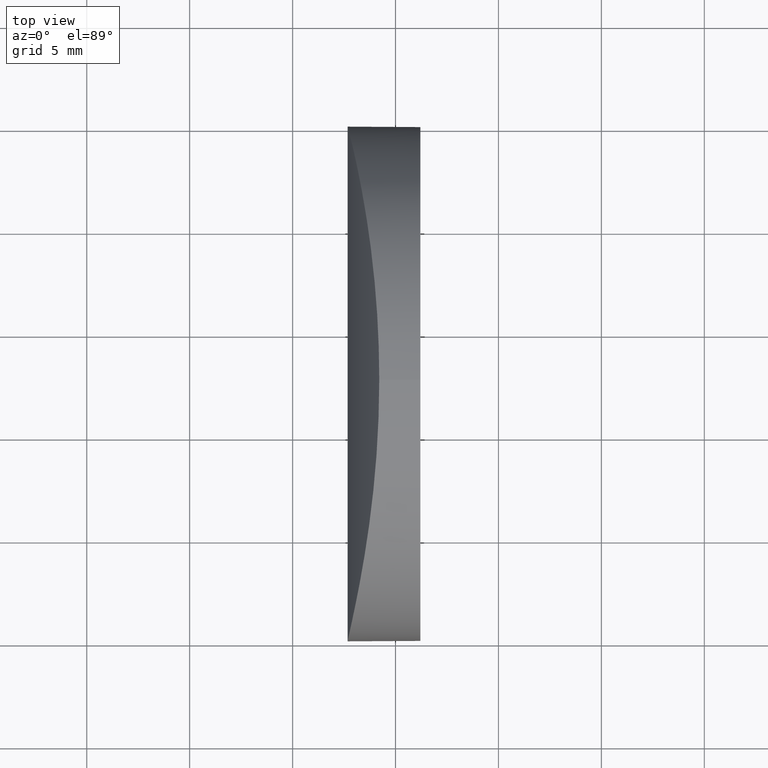
[diagram: clean part render]
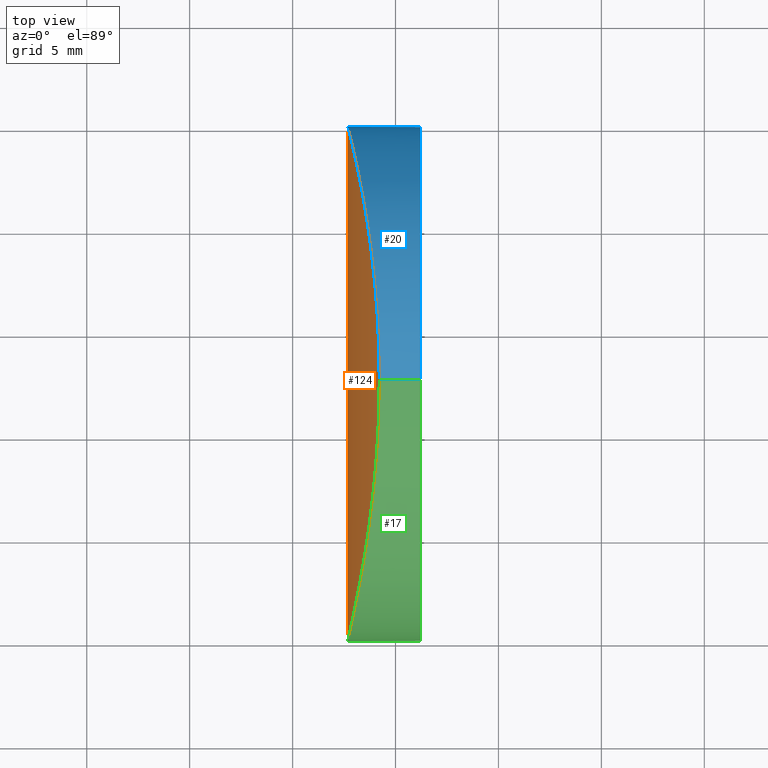
[diagram: same view with three faces highlighted in distinct colors, each labeled with its STEP entity id]
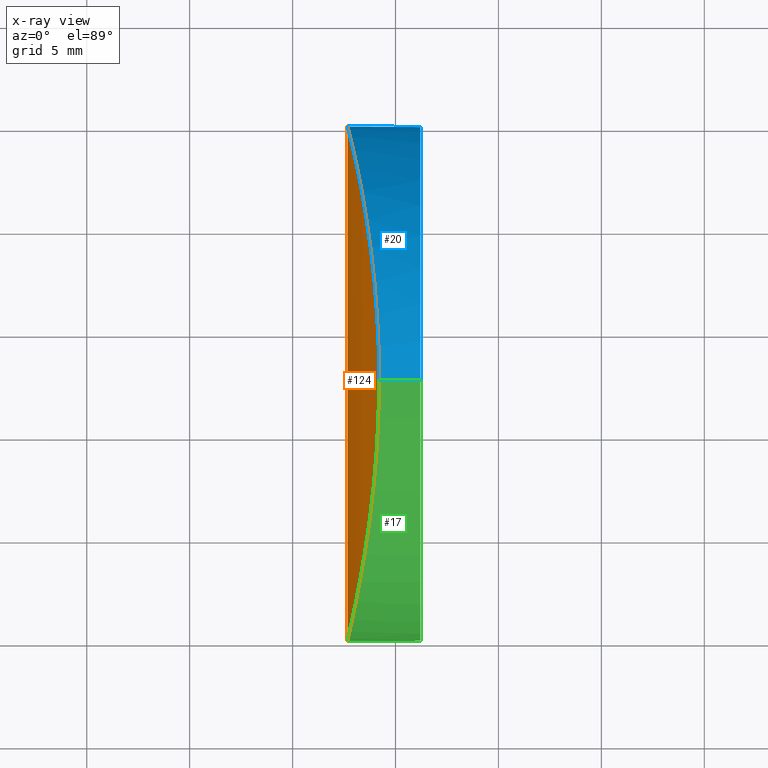
[diagram: x-ray of the same camera — body ghosted, the three highlighted faces saturated]
A machine part, top view with three faces highlighted in distinct colors.
The next image is the same camera in x-ray (body ghosted, the three faces saturated) — at least one of them is partly hidden behind the body in this view.
Their STEP definitions:

[orange] entity #124 — the highlighted cylindrical surface (partial cylindrical patch) has radius 51.68 mm, axis along (-0, -1, -0).
#2 = CARTESIAN_POINT ( 'NONE',  ( -45.79030792696534700, 11.67131942326169100, -12.49999999999999300 ) ) ;
#3 = CARTESIAN_POINT ( 'NONE',  ( -46.66339557160568300, 3.098390246709459300, -8.247879379120028900 ) ) ;
#5 = CARTESIAN_POINT ( 'NONE',  ( -47.24714640499212900, 0.3247629716779009700, 2.860698983020042900 ) ) ;
#6 = CARTESIAN_POINT ( 'NONE',  ( -46.36412914516073900, 4.885793476428752900, 9.921772239871506500 ) ) ;
#8 = CARTESIAN_POINT ( 'NONE',  ( -45.89476719455594600, 15.76187317641963600, 12.07385186795268500 ) ) ;
#10 = CARTESIAN_POINT ( 'NONE',  ( -45.81084306362318200, 14.14288115675962000, -12.41841597622062900 ) ) ;
#11 = EDGE_LOOP ( 'NONE', ( #53, #154 ) ) ;
#12 = CARTESIAN_POINT ( 'NONE',  ( -46.46406008710427200, 20.76707279934122500, 9.410853402651461900 ) ) ;
#13 = CARTESIAN_POINT ( 'NONE',  ( -47.30488473083502000, 24.91839053088533300, 1.643090320681727300 ) ) ;
#15 = EDGE_CURVE ( 'NONE', #158, #192, #197, .T. ) ;
#22 = CARTESIAN_POINT ( 'NONE',  ( -45.87018108676571200, 9.639930766151973500, -12.17538550637803900 ) ) ;
#24 = CARTESIAN_POINT ( 'NONE',  ( -46.81008189738089700, 2.333224887661624600, -7.283744176833163700 ) ) ;
#25 = CARTESIAN_POINT ( 'NONE',  ( -47.16766625701383500, 0.6658392697545838500, 4.046033685528064100 ) ) ;
#26 = CARTESIAN_POINT ( 'NONE',  ( -46.17586913313731100, 6.233588142836938900, 10.84651197892580800 ) ) ;
#28 = CARTESIAN_POINT ( 'NONE',  ( -46.17590686874980600, 18.76671863870877400, -10.84633821980359200 ) ) ;
#30 = CARTESIAN_POINT ( 'NONE',  ( -46.66332557616512800, 21.90122990003854000, 8.248311100343670400 ) ) ;
#31 = CARTESIAN_POINT ( 'NONE',  ( -47.32479958167271400, 25.00001619247675700, -0.8283984885323301100 ) ) ;
#37 = CARTESIAN_POINT ( 'NONE',  ( -45.95170266439522800, 8.454621882931096600, -11.83438418179894400 ) ) ;
#38 = CARTESIAN_POINT ( 'NONE',  ( -47.03151159026785400, 1.269872489666203000, -5.550151219569998200 ) ) ;
#39 = CARTESIAN_POINT ( 'NONE',  ( -47.06590090223925000, 1.116640930830903500, 5.180199794579870300 ) ) ;
#40 = CARTESIAN_POINT ( 'NONE',  ( -45.98301196222952600, 8.083541886637640100, 11.70095291918799200 ) ) ;
#43 = CARTESIAN_POINT ( 'NONE',  ( -45.87017254918426100, 15.35991629448101600, 12.17542066325023100 ) ) ;
#45 = CARTESIAN_POINT ( 'NONE',  ( -46.81000729971526700, 22.66639983566945900, 7.284266827454112000 ) ) ;
#46 = CARTESIAN_POINT ( 'NONE',  ( -47.24719622156315100, 24.67544799791992500, -2.859803829531935500 ) ) ;
#51 = FACE_OUTER_BOUND ( 'NONE', #11, .T. ) ;
#53 = ORIENTED_EDGE ( 'NONE', *, *, #70, .F. ) ;
#57 = CARTESIAN_POINT ( 'NONE',  ( -46.05570620907671800, 7.320510466648785900, -11.38368118711007200 ) ) ;
#59 = CARTESIAN_POINT ( 'NONE',  ( -47.16923389038058200, 0.6590188439173774200, -4.026175082269914700 ) ) ;
#60 = CARTESIAN_POINT ( 'NONE',  ( -47.02745934775956700, 1.291024814161000300, 5.547526355193309800 ) ) ;
#61 = CARTESIAN_POINT ( 'NONE',  ( -45.79030792696531900, 11.67136436606099900, 12.50000000000001800 ) ) ;
#63 = CARTESIAN_POINT ( 'NONE',  ( -45.81085261804626900, 14.14712551843143200, 12.41841115765963700 ) ) ;
#64 = CARTESIAN_POINT ( 'NONE',  ( -47.03143812862232700, 23.72979213840447700, 5.550822286066718000 ) ) ;
#66 = CARTESIAN_POINT ( 'NONE',  ( -47.16772897476804600, 24.33443359497810800, -4.045238107831186100 ) ) ;
#67 = CARTESIAN_POINT ( 'NONE',  ( -46.36418237326591900, 20.11456129455762800, -9.921500794796307000 ) ) ;
#70 = EDGE_CURVE ( 'NONE', #192, #158, #174, .T. ) ;
#75 = CARTESIAN_POINT ( 'NONE',  ( -46.17893211793015200, 6.234711610833271900, -10.82415399849542900 ) ) ;
#76 = CARTESIAN_POINT ( 'NONE',  ( -47.24810010770563900, 0.3207294632353692200, -2.842873371366317200 ) ) ;
#77 = CARTESIAN_POINT ( 'NONE',  ( -46.90037227635533400, 1.888128408293022800, 6.618661210194984400 ) ) ;
#78 = CARTESIAN_POINT ( 'NONE',  ( -45.86927303265107300, 15.34350374820728500, -12.17912209058406800 ) ) ;
#81 = CARTESIAN_POINT ( 'NONE',  ( -45.95017142662892700, 8.473560108743353000, 11.84088859742116300 ) ) ;
#82 = CARTESIAN_POINT ( 'NONE',  ( -46.22394806218109400, 19.11757580550638700, 10.61254639677257200 ) ) ;
#84 = CARTESIAN_POINT ( 'NONE',  ( -47.32479174746993100, 24.99998380274873700, 0.8288870845917309900 ) ) ;
#85 = CARTESIAN_POINT ( 'NONE',  ( -47.06597184806317100, 23.88367934262538500, -5.179497724033479000 ) ) ;
#87 = CYLINDRICAL_SURFACE ( 'NONE', #221, 51.68000000000000000 ) ;
#90 = CARTESIAN_POINT ( 'NONE',  ( -46.36459217366430600, 4.859215251489445100, -9.926846267627306400 ) ) ;
#91 = CARTESIAN_POINT ( 'NONE',  ( -47.32480903430271700, -5.527343040555848800E-005, -0.8277595916624794800 ) ) ;
#92 = CARTESIAN_POINT ( 'NONE',  ( -46.66242548313416400, 3.090125323861764500, 8.268182169428067500 ) ) ;
#94 = CARTESIAN_POINT ( 'NONE',  ( -45.95018824734069100, 16.52665198882625600, -11.84081727373304600 ) ) ;
#95 = CARTESIAN_POINT ( 'NONE',  ( -46.09092852089732900, 18.05030604918599500, -11.23003908778213300 ) ) ;
#96 = CARTESIAN_POINT ( 'NONE',  ( -46.17889411643300700, 18.76498103161128500, 10.82433103536812700 ) ) ;
#97 = CARTESIAN_POINT ( 'NONE',  ( -47.13708631901378300, 24.20072641902389400, 4.417065332092457600 ) ) ;
#98 = CARTESIAN_POINT ( 'NONE',  ( -46.94486939386069200, 23.32407307275199700, -6.265431513069337700 ) ) ;
#107 = CARTESIAN_POINT ( 'NONE',  ( -45.79030792696534000, 12.50000000000000000, -12.49999999999999300 ) ) ;
#108 = CARTESIAN_POINT ( 'NONE',  ( -46.61355193950787900, 3.371937104323853500, -8.549453190457802200 ) ) ;
#109 = CARTESIAN_POINT ( 'NONE',  ( -47.30485778503640400, 0.08169103691292876900, 1.647902899572816900 ) ) ;
#110 = CARTESIAN_POINT ( 'NONE',  ( -46.46302441729962100, 4.252714032309552500, 9.402126330283810100 ) ) ;
#114 = CARTESIAN_POINT ( 'NONE',  ( -46.46308382765167300, 20.74765223734772200, -9.401805906393285300 ) ) ;
#115 = CARTESIAN_POINT ( 'NONE',  ( -45.79030792696532600, 13.32863563327235200, 12.50000000000001400 ) ) ;
#118 = CARTESIAN_POINT ( 'NONE',  ( -47.22460618950752600, 24.57965061657653600, 3.240516324002094400 ) ) ;
#119 = CARTESIAN_POINT ( 'NONE',  ( -46.76142541237882000, 22.42661921844369000, -7.641092542722950600 ) ) ;
#122 = CARTESIAN_POINT ( 'NONE',  ( -45.81085484772124500, 10.85278568513776200, -12.41840239347281000 ) ) ;
#123 = CARTESIAN_POINT ( 'NONE',  ( -46.76173594497234400, 2.578593189013371800, -7.614687590215988100 ) ) ;
#124 = ADVANCED_FACE ( 'NONE', ( #51 ), #87, .T. ) ;
#125 = CARTESIAN_POINT ( 'NONE',  ( -47.22319732157201600, 0.4263641104043631200, 3.262677608832765600 ) ) ;
#126 = CARTESIAN_POINT ( 'NONE',  ( -46.31535982927780300, 5.216703655266789100, 10.16709296077004500 ) ) ;
#127 = CARTESIAN_POINT ( 'NONE',  ( -46.31540905156443700, 19.78363931782192300, -10.16684818941723700 ) ) ;
#129 = CARTESIAN_POINT ( 'NONE',  ( 4.355204334851265500, 25.00000000000000000, 4.286263797015675000E-017 ) ) ;
#130 = CARTESIAN_POINT ( 'NONE',  ( -46.36453943599593000, 20.14043307267299100, 9.927113614898342300 ) ) ;
#131 = CARTESIAN_POINT ( 'NONE',  ( -47.30488958999367800, 24.91844061810692400, -1.646930535384975500 ) ) ;
#132 = CARTESIAN_POINT ( 'NONE',  ( -45.79030792696534000, 12.50000000000000000, -12.49999999999999300 ) ) ;
#141 = CARTESIAN_POINT ( 'NONE',  ( -45.79030792696534000, 12.50000000000000000, -12.49999999999999300 ) ) ;
#142 = CARTESIAN_POINT ( 'NONE',  ( -45.89477825798668000, 9.237954191042298600, -12.07380595391256900 ) ) ;
#144 = CARTESIAN_POINT ( 'NONE',  ( -46.94800261893773600, 1.653643580548881200, -6.266700415361149200 ) ) ;
#146 = CARTESIAN_POINT ( 'NONE',  ( -47.13600344224936800, 0.8040486390270962200, 4.429453168412070600 ) ) ;
#148 = CARTESIAN_POINT ( 'NONE',  ( -46.09089837807739100, 6.949972242868815500, 11.23017354414546500 ) ) ;
#150 = CARTESIAN_POINT ( 'NONE',  ( -45.95168594281236800, 16.54516839225513900, 11.83445513011099200 ) ) ;
#151 = CARTESIAN_POINT ( 'NONE',  ( -45.79030792696533300, 12.50000000000000200, 12.50000000000001800 ) ) ;
#152 = CARTESIAN_POINT ( 'NONE',  ( -46.61348437527802700, 21.62768551716735000, 8.549855010972097000 ) ) ;
#153 = CARTESIAN_POINT ( 'NONE',  ( -47.22325205237048400, 24.57386951126281400, -3.261816194698020900 ) ) ;
#154 = ORIENTED_EDGE ( 'NONE', *, *, #15, .F. ) ;
#158 = VERTEX_POINT ( 'NONE', #211 ) ;
#161 = CARTESIAN_POINT ( 'NONE',  ( -45.98411308967077800, 8.071220402303199000, -11.69620538768377600 ) ) ;
#163 = CARTESIAN_POINT ( 'NONE',  ( -47.13715272441911700, 0.7989815357055644100, -4.416293979441731700 ) ) ;
#164 = CARTESIAN_POINT ( 'NONE',  ( -45.89334445724572500, 9.259931573880571400, 12.07976893688391100 ) ) ;
#165 = CARTESIAN_POINT ( 'NONE',  ( -45.79030792696533300, 12.50000000000000200, 12.50000000000001800 ) ) ;
#167 = CARTESIAN_POINT ( 'NONE',  ( -46.51306965510701000, 21.04919864299240800, -9.128300185577195700 ) ) ;
#168 = CARTESIAN_POINT ( 'NONE',  ( -45.98303199967317300, 16.91668784898643500, -11.70086694364147200 ) ) ;
#169 = CARTESIAN_POINT ( 'NONE',  ( -46.76166193529329700, 22.42102548287955700, 7.615183058173051300 ) ) ;
#170 = CARTESIAN_POINT ( 'NONE',  ( -47.13606936350050300, 24.19624138003150200, -4.428689380507821100 ) ) ;
#174 = B_SPLINE_CURVE_WITH_KNOTS ( 'NONE', 3,
 ( #141, #222, #10, #78, #203, #94, #168, #95, #28, #127, #67, #114, #167, #231, #119, #210, #98, #190, #85, #170, #66, #153, #46, #131, #31, #84, #13, #229, #118, #208, #97, #64, #188, #45, #169, #30, #152, #12, #130, #82, #96, #228, #187, #207, #150, #8, #43, #63, #115, #151 ),
 .UNSPECIFIED., .F., .F.,
 ( 4, 2, 2, 2, 2, 2, 2, 2, 2, 2, 2, 2, 2, 2, 2, 2, 2, 2, 2, 2, 2, 2, 2, 2, 4 ),
 ( -0.01959955982119548200, -0.01714958474799611200, -0.01592459721139642700, -0.01469960967479674200, -0.01224963460159737100, -0.01102464706499768800, -0.009799659528398002900, -0.007349684455198643100, -0.006124696918598964900, -0.004899709381999288500, -0.003674721845399613700, -0.002449734308799935600, 2.407643994173369600E-007, 0.002450215837598773700, 0.003675203374198451900, 0.004900190910798126600, 0.007350165983997476000, 0.008575153520597150700, 0.009800141057196828900, 0.01225011613039617800, 0.01347510366699585700, 0.01470009120359552800, 0.01592507874019520600, 0.01715006627679488400, 0.01960004134999422700 ),
 .UNSPECIFIED. ) ;
#177 = CARTESIAN_POINT ( 'NONE',  ( -46.09489051166787700, 6.953202582221585700, -11.20933480580800000 ) ) ;
#179 = CARTESIAN_POINT ( 'NONE',  ( -47.22466029173461500, 0.4201185763313008400, -3.239658210660320700 ) ) ;
#180 = CARTESIAN_POINT ( 'NONE',  ( -46.94479421248759400, 1.676283052785055400, 6.266045389628999400 ) ) ;
#182 = CARTESIAN_POINT ( 'NONE',  ( -45.81084083637391300, 10.85720717122831900, 12.41842473980264700 ) ) ;
#187 = CARTESIAN_POINT ( 'NONE',  ( -46.05567950116177700, 17.67922838610378400, 11.38379922341173300 ) ) ;
#188 = CARTESIAN_POINT ( 'NONE',  ( -46.94792740490014900, 23.34600121432601200, 6.267309868502645800 ) ) ;
#190 = CARTESIAN_POINT ( 'NONE',  ( -47.02753211410484400, 23.70930855565477600, -5.546854210573944700 ) ) ;
#192 = VERTEX_POINT ( 'NONE', #132 ) ;
#195 = DIRECTION ( 'NONE',  ( -0.0000000000000000000, -1.000000000000000000, -0.0000000000000000000 ) ) ;
#196 = DIRECTION ( 'NONE',  ( 0.0000000000000000000, 0.0000000000000000000, -1.000000000000000000 ) ) ;
#197 = B_SPLINE_CURVE_WITH_KNOTS ( 'NONE', 3,
 ( #165, #61, #182, #198, #164, #81, #40, #148, #26, #126, #6, #110, #220, #92, #202, #77, #180, #60, #39, #146, #25, #125, #5, #109, #219, #91, #201, #76, #179, #59, #163, #38, #144, #24, #123, #3, #108, #218, #90, #199, #75, #177, #57, #161, #37, #142, #22, #122, #2, #107 ),
 .UNSPECIFIED., .F., .F.,
 ( 4, 2, 2, 2, 2, 2, 2, 2, 2, 2, 2, 2, 2, 2, 2, 2, 2, 2, 2, 2, 2, 2, 2, 2, 4 ),
 ( 0.01960004134999422700, 0.02205001642516463500, 0.02327500396274984100, 0.02449999150033504300, 0.02694996657550545500, 0.02817495411309066400, 0.02939994165067586600, 0.03184991672584627800, 0.03307490426343148700, 0.03429989180101668900, 0.03552487933860189200, 0.03674986687618710100, 0.03919984195135751300, 0.04164981702652792400, 0.04287480456411312700, 0.04409979210169832900, 0.04654976717686874800, 0.04777475471445395700, 0.04899974225203916600, 0.05144971732720958500, 0.05267470486479479400, 0.05389969240238000300, 0.05512467993996521300, 0.05634966747755042200, 0.05879964255272083400 ),
 .UNSPECIFIED. ) ;
#198 = CARTESIAN_POINT ( 'NONE',  ( -45.86926463995871500, 9.656647429377269300, 12.17915664088589300 ) ) ;
#199 = CARTESIAN_POINT ( 'NONE',  ( -46.22399032248507900, 5.882100740289084600, -10.61234547528782800 ) ) ;
#201 = CARTESIAN_POINT ( 'NONE',  ( -47.30491626340962300, 0.08147891684300206900, -1.642124648280975900 ) ) ;
#202 = CARTESIAN_POINT ( 'NONE',  ( -46.76135163672954300, 2.573760323155144900, 7.641580036530260900 ) ) ;
#203 = CARTESIAN_POINT ( 'NONE',  ( -45.89335537598429200, 15.74024017691121800, -12.07972365350232900 ) ) ;
#207 = CARTESIAN_POINT ( 'NONE',  ( -45.98409320433444900, 16.92855216589923700, 11.69629074314937300 ) ) ;
#208 = CARTESIAN_POINT ( 'NONE',  ( -47.16917074394407200, 24.34070658998819800, 4.026980570414050200 ) ) ;
#210 = CARTESIAN_POINT ( 'NONE',  ( -46.90044848593517900, 23.11223959318368800, -6.618072748578153000 ) ) ;
#211 = CARTESIAN_POINT ( 'NONE',  ( -45.79030792696533300, 12.50000000000000200, 12.50000000000001800 ) ) ;
#218 = CARTESIAN_POINT ( 'NONE',  ( -46.46411946576831300, 4.232561712247295400, -9.410536248864646700 ) ) ;
#219 = CARTESIAN_POINT ( 'NONE',  ( -47.32478228252730900, 5.532911008597743500E-005, 0.8294281193059516200 ) ) ;
#220 = CARTESIAN_POINT ( 'NONE',  ( -46.51300737446237600, 3.951172021998588900, 9.128646375800171200 ) ) ;
#221 = AXIS2_PLACEMENT_3D ( 'NONE', #129, #195, #196 ) ;
#222 = CARTESIAN_POINT ( 'NONE',  ( -45.79030792696536200, 13.32868057607162100, -12.49999999999999500 ) ) ;
#228 = CARTESIAN_POINT ( 'NONE',  ( -46.09486014450688200, 18.04652026172728100, 11.20947111490687200 ) ) ;
#229 = CARTESIAN_POINT ( 'NONE',  ( -47.24805115244367900, 24.67906327115399600, 2.843758100138448000 ) ) ;
#231 = CARTESIAN_POINT ( 'NONE',  ( -46.66249541480676300, 21.91025412121117500, -8.267754485689280800 ) ) ;

[blue] entity #20 — the highlighted cylindrical surface (partial cylindrical patch) has radius 12.5 mm, axis along (1, -0, -0).
#8 = CARTESIAN_POINT ( 'NONE',  ( -45.89476719455594600, 15.76187317641963600, 12.07385186795268500 ) ) ;
#10 = CARTESIAN_POINT ( 'NONE',  ( -45.81084306362318200, 14.14288115675962000, -12.41841597622062900 ) ) ;
#12 = CARTESIAN_POINT ( 'NONE',  ( -46.46406008710427200, 20.76707279934122500, 9.410853402651461900 ) ) ;
#13 = CARTESIAN_POINT ( 'NONE',  ( -47.30488473083502000, 24.91839053088533300, 1.643090320681727300 ) ) ;
#14 = CARTESIAN_POINT ( 'NONE',  ( -43.79479566514873300, 12.50000000000000000, 1.215549762655053200E-014 ) ) ;
#16 = CYLINDRICAL_SURFACE ( 'NONE', #41, 12.50000000000000500 ) ;
#18 = ORIENTED_EDGE ( 'NONE', *, *, #27, .T. ) ;
#20 = ADVANCED_FACE ( 'NONE', ( #113 ), #16, .T. ) ;
#21 = CARTESIAN_POINT ( 'NONE',  ( -43.79479566514873300, 12.50000000000000200, 12.50000000000001800 ) ) ;
#27 = EDGE_CURVE ( 'NONE', #158, #65, #140, .T. ) ;
#28 = CARTESIAN_POINT ( 'NONE',  ( -46.17590686874980600, 18.76671863870877400, -10.84633821980359200 ) ) ;
#29 = DIRECTION ( 'NONE',  ( 1.000000000000000000, -0.0000000000000000000, -2.775557561562888400E-016 ) ) ;
#30 = CARTESIAN_POINT ( 'NONE',  ( -46.66332557616512800, 21.90122990003854000, 8.248311100343670400 ) ) ;
#31 = CARTESIAN_POINT ( 'NONE',  ( -47.32479958167271400, 25.00001619247675700, -0.8283984885323301100 ) ) ;
#32 = LINE ( 'NONE', #62, #143 ) ;
#34 = ORIENTED_EDGE ( 'NONE', *, *, #70, .T. ) ;
#36 = DIRECTION ( 'NONE',  ( 1.000000000000000000, -0.0000000000000000000, -2.775557561562888400E-016 ) ) ;
#41 = AXIS2_PLACEMENT_3D ( 'NONE', #55, #36, #176 ) ;
#43 = CARTESIAN_POINT ( 'NONE',  ( -45.87017254918426100, 15.35991629448101600, 12.17542066325023100 ) ) ;
#45 = CARTESIAN_POINT ( 'NONE',  ( -46.81000729971526700, 22.66639983566945900, 7.284266827454112000 ) ) ;
#46 = CARTESIAN_POINT ( 'NONE',  ( -47.24719622156315100, 24.67544799791992500, -2.859803829531935500 ) ) ;
#47 = CARTESIAN_POINT ( 'NONE',  ( -43.79479566514873300, 12.50000000000000000, -12.49999999999999300 ) ) ;
#50 = ORIENTED_EDGE ( 'NONE', *, *, #157, .F. ) ;
#55 = CARTESIAN_POINT ( 'NONE',  ( -56.49479566514872900, 12.50000000000000000, 1.568045572973539800E-014 ) ) ;
#56 = AXIS2_PLACEMENT_3D ( 'NONE', #14, #185, #171 ) ;
#62 = CARTESIAN_POINT ( 'NONE',  ( -56.49479566514872900, 12.50000000000000000, -12.49999999999999100 ) ) ;
#63 = CARTESIAN_POINT ( 'NONE',  ( -45.81085261804626900, 14.14712551843143200, 12.41841115765963700 ) ) ;
#64 = CARTESIAN_POINT ( 'NONE',  ( -47.03143812862232700, 23.72979213840447700, 5.550822286066718000 ) ) ;
#65 = VERTEX_POINT ( 'NONE', #21 ) ;
#66 = CARTESIAN_POINT ( 'NONE',  ( -47.16772897476804600, 24.33443359497810800, -4.045238107831186100 ) ) ;
#67 = CARTESIAN_POINT ( 'NONE',  ( -46.36418237326591900, 20.11456129455762800, -9.921500794796307000 ) ) ;
#70 = EDGE_CURVE ( 'NONE', #192, #158, #174, .T. ) ;
#78 = CARTESIAN_POINT ( 'NONE',  ( -45.86927303265107300, 15.34350374820728500, -12.17912209058406800 ) ) ;
#82 = CARTESIAN_POINT ( 'NONE',  ( -46.22394806218109400, 19.11757580550638700, 10.61254639677257200 ) ) ;
#84 = CARTESIAN_POINT ( 'NONE',  ( -47.32479174746993100, 24.99998380274873700, 0.8288870845917309900 ) ) ;
#85 = CARTESIAN_POINT ( 'NONE',  ( -47.06597184806317100, 23.88367934262538500, -5.179497724033479000 ) ) ;
#94 = CARTESIAN_POINT ( 'NONE',  ( -45.95018824734069100, 16.52665198882625600, -11.84081727373304600 ) ) ;
#95 = CARTESIAN_POINT ( 'NONE',  ( -46.09092852089732900, 18.05030604918599500, -11.23003908778213300 ) ) ;
#96 = CARTESIAN_POINT ( 'NONE',  ( -46.17889411643300700, 18.76498103161128500, 10.82433103536812700 ) ) ;
#97 = CARTESIAN_POINT ( 'NONE',  ( -47.13708631901378300, 24.20072641902389400, 4.417065332092457600 ) ) ;
#98 = CARTESIAN_POINT ( 'NONE',  ( -46.94486939386069200, 23.32407307275199700, -6.265431513069337700 ) ) ;
#106 = CARTESIAN_POINT ( 'NONE',  ( -56.49479566514872900, 12.50000000000000200, 12.50000000000002100 ) ) ;
#113 = FACE_OUTER_BOUND ( 'NONE', #204, .T. ) ;
#114 = CARTESIAN_POINT ( 'NONE',  ( -46.46308382765167300, 20.74765223734772200, -9.401805906393285300 ) ) ;
#115 = CARTESIAN_POINT ( 'NONE',  ( -45.79030792696532600, 13.32863563327235200, 12.50000000000001400 ) ) ;
#118 = CARTESIAN_POINT ( 'NONE',  ( -47.22460618950752600, 24.57965061657653600, 3.240516324002094400 ) ) ;
#119 = CARTESIAN_POINT ( 'NONE',  ( -46.76142541237882000, 22.42661921844369000, -7.641092542722950600 ) ) ;
#127 = CARTESIAN_POINT ( 'NONE',  ( -46.31540905156443700, 19.78363931782192300, -10.16684818941723700 ) ) ;
#130 = CARTESIAN_POINT ( 'NONE',  ( -46.36453943599593000, 20.14043307267299100, 9.927113614898342300 ) ) ;
#131 = CARTESIAN_POINT ( 'NONE',  ( -47.30488958999367800, 24.91844061810692400, -1.646930535384975500 ) ) ;
#132 = CARTESIAN_POINT ( 'NONE',  ( -45.79030792696534000, 12.50000000000000000, -12.49999999999999300 ) ) ;
#140 = LINE ( 'NONE', #106, #227 ) ;
#141 = CARTESIAN_POINT ( 'NONE',  ( -45.79030792696534000, 12.50000000000000000, -12.49999999999999300 ) ) ;
#143 = VECTOR ( 'NONE', #29, 1000.000000000000000 ) ;
#150 = CARTESIAN_POINT ( 'NONE',  ( -45.95168594281236800, 16.54516839225513900, 11.83445513011099200 ) ) ;
#151 = CARTESIAN_POINT ( 'NONE',  ( -45.79030792696533300, 12.50000000000000200, 12.50000000000001800 ) ) ;
#152 = CARTESIAN_POINT ( 'NONE',  ( -46.61348437527802700, 21.62768551716735000, 8.549855010972097000 ) ) ;
#153 = CARTESIAN_POINT ( 'NONE',  ( -47.22325205237048400, 24.57386951126281400, -3.261816194698020900 ) ) ;
#157 = EDGE_CURVE ( 'NONE', #192, #213, #32, .T. ) ;
#158 = VERTEX_POINT ( 'NONE', #211 ) ;
#166 = ORIENTED_EDGE ( 'NONE', *, *, #206, .F. ) ;
#167 = CARTESIAN_POINT ( 'NONE',  ( -46.51306965510701000, 21.04919864299240800, -9.128300185577195700 ) ) ;
#168 = CARTESIAN_POINT ( 'NONE',  ( -45.98303199967317300, 16.91668784898643500, -11.70086694364147200 ) ) ;
#169 = CARTESIAN_POINT ( 'NONE',  ( -46.76166193529329700, 22.42102548287955700, 7.615183058173051300 ) ) ;
#170 = CARTESIAN_POINT ( 'NONE',  ( -47.13606936350050300, 24.19624138003150200, -4.428689380507821100 ) ) ;
#171 = DIRECTION ( 'NONE',  ( 0.0000000000000000000, 0.0000000000000000000, -1.000000000000000000 ) ) ;
#174 = B_SPLINE_CURVE_WITH_KNOTS ( 'NONE', 3,
 ( #141, #222, #10, #78, #203, #94, #168, #95, #28, #127, #67, #114, #167, #231, #119, #210, #98, #190, #85, #170, #66, #153, #46, #131, #31, #84, #13, #229, #118, #208, #97, #64, #188, #45, #169, #30, #152, #12, #130, #82, #96, #228, #187, #207, #150, #8, #43, #63, #115, #151 ),
 .UNSPECIFIED., .F., .F.,
 ( 4, 2, 2, 2, 2, 2, 2, 2, 2, 2, 2, 2, 2, 2, 2, 2, 2, 2, 2, 2, 2, 2, 2, 2, 4 ),
 ( -0.01959955982119548200, -0.01714958474799611200, -0.01592459721139642700, -0.01469960967479674200, -0.01224963460159737100, -0.01102464706499768800, -0.009799659528398002900, -0.007349684455198643100, -0.006124696918598964900, -0.004899709381999288500, -0.003674721845399613700, -0.002449734308799935600, 2.407643994173369600E-007, 0.002450215837598773700, 0.003675203374198451900, 0.004900190910798126600, 0.007350165983997476000, 0.008575153520597150700, 0.009800141057196828900, 0.01225011613039617800, 0.01347510366699585700, 0.01470009120359552800, 0.01592507874019520600, 0.01715006627679488400, 0.01960004134999422700 ),
 .UNSPECIFIED. ) ;
#176 = DIRECTION ( 'NONE',  ( 0.0000000000000000000, 0.0000000000000000000, -1.000000000000000000 ) ) ;
#178 = CIRCLE ( 'NONE', #56, 12.50000000000000500 ) ;
#185 = DIRECTION ( 'NONE',  ( 1.000000000000000000, -4.930380657631322700E-032, -2.510324564891253900E-016 ) ) ;
#187 = CARTESIAN_POINT ( 'NONE',  ( -46.05567950116177700, 17.67922838610378400, 11.38379922341173300 ) ) ;
#188 = CARTESIAN_POINT ( 'NONE',  ( -46.94792740490014900, 23.34600121432601200, 6.267309868502645800 ) ) ;
#190 = CARTESIAN_POINT ( 'NONE',  ( -47.02753211410484400, 23.70930855565477600, -5.546854210573944700 ) ) ;
#192 = VERTEX_POINT ( 'NONE', #132 ) ;
#203 = CARTESIAN_POINT ( 'NONE',  ( -45.89335537598429200, 15.74024017691121800, -12.07972365350232900 ) ) ;
#204 = EDGE_LOOP ( 'NONE', ( #34, #18, #166, #50 ) ) ;
#206 = EDGE_CURVE ( 'NONE', #213, #65, #178, .T. ) ;
#207 = CARTESIAN_POINT ( 'NONE',  ( -45.98409320433444900, 16.92855216589923700, 11.69629074314937300 ) ) ;
#208 = CARTESIAN_POINT ( 'NONE',  ( -47.16917074394407200, 24.34070658998819800, 4.026980570414050200 ) ) ;
#210 = CARTESIAN_POINT ( 'NONE',  ( -46.90044848593517900, 23.11223959318368800, -6.618072748578153000 ) ) ;
#211 = CARTESIAN_POINT ( 'NONE',  ( -45.79030792696533300, 12.50000000000000200, 12.50000000000001800 ) ) ;
#213 = VERTEX_POINT ( 'NONE', #47 ) ;
#217 = DIRECTION ( 'NONE',  ( 1.000000000000000000, -0.0000000000000000000, -2.775557561562888400E-016 ) ) ;
#222 = CARTESIAN_POINT ( 'NONE',  ( -45.79030792696536200, 13.32868057607162100, -12.49999999999999500 ) ) ;
#227 = VECTOR ( 'NONE', #217, 1000.000000000000000 ) ;
#228 = CARTESIAN_POINT ( 'NONE',  ( -46.09486014450688200, 18.04652026172728100, 11.20947111490687200 ) ) ;
#229 = CARTESIAN_POINT ( 'NONE',  ( -47.24805115244367900, 24.67906327115399600, 2.843758100138448000 ) ) ;
#231 = CARTESIAN_POINT ( 'NONE',  ( -46.66249541480676300, 21.91025412121117500, -8.267754485689280800 ) ) ;

[green] entity #17 — the highlighted cylindrical surface (partial cylindrical patch) has radius 12.5 mm, axis along (1, -0, -0).
#2 = CARTESIAN_POINT ( 'NONE',  ( -45.79030792696534700, 11.67131942326169100, -12.49999999999999300 ) ) ;
#3 = CARTESIAN_POINT ( 'NONE',  ( -46.66339557160568300, 3.098390246709459300, -8.247879379120028900 ) ) ;
#5 = CARTESIAN_POINT ( 'NONE',  ( -47.24714640499212900, 0.3247629716779009700, 2.860698983020042900 ) ) ;
#6 = CARTESIAN_POINT ( 'NONE',  ( -46.36412914516073900, 4.885793476428752900, 9.921772239871506500 ) ) ;
#15 = EDGE_CURVE ( 'NONE', #158, #192, #197, .T. ) ;
#17 = ADVANCED_FACE ( 'NONE', ( #137 ), #117, .T. ) ;
#21 = CARTESIAN_POINT ( 'NONE',  ( -43.79479566514873300, 12.50000000000000200, 12.50000000000001800 ) ) ;
#22 = CARTESIAN_POINT ( 'NONE',  ( -45.87018108676571200, 9.639930766151973500, -12.17538550637803900 ) ) ;
#24 = CARTESIAN_POINT ( 'NONE',  ( -46.81008189738089700, 2.333224887661624600, -7.283744176833163700 ) ) ;
#25 = CARTESIAN_POINT ( 'NONE',  ( -47.16766625701383500, 0.6658392697545838500, 4.046033685528064100 ) ) ;
#26 = CARTESIAN_POINT ( 'NONE',  ( -46.17586913313731100, 6.233588142836938900, 10.84651197892580800 ) ) ;
#27 = EDGE_CURVE ( 'NONE', #158, #65, #140, .T. ) ;
#29 = DIRECTION ( 'NONE',  ( 1.000000000000000000, -0.0000000000000000000, -2.775557561562888400E-016 ) ) ;
#32 = LINE ( 'NONE', #62, #143 ) ;
#33 = EDGE_CURVE ( 'NONE', #65, #213, #186, .T. ) ;
#37 = CARTESIAN_POINT ( 'NONE',  ( -45.95170266439522800, 8.454621882931096600, -11.83438418179894400 ) ) ;
#38 = CARTESIAN_POINT ( 'NONE',  ( -47.03151159026785400, 1.269872489666203000, -5.550151219569998200 ) ) ;
#39 = CARTESIAN_POINT ( 'NONE',  ( -47.06590090223925000, 1.116640930830903500, 5.180199794579870300 ) ) ;
#40 = CARTESIAN_POINT ( 'NONE',  ( -45.98301196222952600, 8.083541886637640100, 11.70095291918799200 ) ) ;
#42 = ORIENTED_EDGE ( 'NONE', *, *, #33, .F. ) ;
#47 = CARTESIAN_POINT ( 'NONE',  ( -43.79479566514873300, 12.50000000000000000, -12.49999999999999300 ) ) ;
#49 = EDGE_LOOP ( 'NONE', ( #99, #145, #89, #42 ) ) ;
#54 = DIRECTION ( 'NONE',  ( 1.000000000000000000, -4.930380657631322700E-032, -2.510324564891253900E-016 ) ) ;
#57 = CARTESIAN_POINT ( 'NONE',  ( -46.05570620907671800, 7.320510466648785900, -11.38368118711007200 ) ) ;
#59 = CARTESIAN_POINT ( 'NONE',  ( -47.16923389038058200, 0.6590188439173774200, -4.026175082269914700 ) ) ;
#60 = CARTESIAN_POINT ( 'NONE',  ( -47.02745934775956700, 1.291024814161000300, 5.547526355193309800 ) ) ;
#61 = CARTESIAN_POINT ( 'NONE',  ( -45.79030792696531900, 11.67136436606099900, 12.50000000000001800 ) ) ;
#62 = CARTESIAN_POINT ( 'NONE',  ( -56.49479566514872900, 12.50000000000000000, -12.49999999999999100 ) ) ;
#65 = VERTEX_POINT ( 'NONE', #21 ) ;
#73 = DIRECTION ( 'NONE',  ( 1.000000000000000000, -0.0000000000000000000, -2.775557561562888400E-016 ) ) ;
#75 = CARTESIAN_POINT ( 'NONE',  ( -46.17893211793015200, 6.234711610833271900, -10.82415399849542900 ) ) ;
#76 = CARTESIAN_POINT ( 'NONE',  ( -47.24810010770563900, 0.3207294632353692200, -2.842873371366317200 ) ) ;
#77 = CARTESIAN_POINT ( 'NONE',  ( -46.90037227635533400, 1.888128408293022800, 6.618661210194984400 ) ) ;
#80 = CARTESIAN_POINT ( 'NONE',  ( -56.49479566514872900, 12.50000000000000000, 1.568045572973539800E-014 ) ) ;
#81 = CARTESIAN_POINT ( 'NONE',  ( -45.95017142662892700, 8.473560108743353000, 11.84088859742116300 ) ) ;
#89 = ORIENTED_EDGE ( 'NONE', *, *, #157, .T. ) ;
#90 = CARTESIAN_POINT ( 'NONE',  ( -46.36459217366430600, 4.859215251489445100, -9.926846267627306400 ) ) ;
#91 = CARTESIAN_POINT ( 'NONE',  ( -47.32480903430271700, -5.527343040555848800E-005, -0.8277595916624794800 ) ) ;
#92 = CARTESIAN_POINT ( 'NONE',  ( -46.66242548313416400, 3.090125323861764500, 8.268182169428067500 ) ) ;
#99 = ORIENTED_EDGE ( 'NONE', *, *, #27, .F. ) ;
#101 = AXIS2_PLACEMENT_3D ( 'NONE', #80, #73, #223 ) ;
#106 = CARTESIAN_POINT ( 'NONE',  ( -56.49479566514872900, 12.50000000000000200, 12.50000000000002100 ) ) ;
#107 = CARTESIAN_POINT ( 'NONE',  ( -45.79030792696534000, 12.50000000000000000, -12.49999999999999300 ) ) ;
#108 = CARTESIAN_POINT ( 'NONE',  ( -46.61355193950787900, 3.371937104323853500, -8.549453190457802200 ) ) ;
#109 = CARTESIAN_POINT ( 'NONE',  ( -47.30485778503640400, 0.08169103691292876900, 1.647902899572816900 ) ) ;
#110 = CARTESIAN_POINT ( 'NONE',  ( -46.46302441729962100, 4.252714032309552500, 9.402126330283810100 ) ) ;
#117 = CYLINDRICAL_SURFACE ( 'NONE', #101, 12.50000000000000500 ) ;
#122 = CARTESIAN_POINT ( 'NONE',  ( -45.81085484772124500, 10.85278568513776200, -12.41840239347281000 ) ) ;
#123 = CARTESIAN_POINT ( 'NONE',  ( -46.76173594497234400, 2.578593189013371800, -7.614687590215988100 ) ) ;
#125 = CARTESIAN_POINT ( 'NONE',  ( -47.22319732157201600, 0.4263641104043631200, 3.262677608832765600 ) ) ;
#126 = CARTESIAN_POINT ( 'NONE',  ( -46.31535982927780300, 5.216703655266789100, 10.16709296077004500 ) ) ;
#132 = CARTESIAN_POINT ( 'NONE',  ( -45.79030792696534000, 12.50000000000000000, -12.49999999999999300 ) ) ;
#137 = FACE_OUTER_BOUND ( 'NONE', #49, .T. ) ;
#140 = LINE ( 'NONE', #106, #227 ) ;
#142 = CARTESIAN_POINT ( 'NONE',  ( -45.89477825798668000, 9.237954191042298600, -12.07380595391256900 ) ) ;
#143 = VECTOR ( 'NONE', #29, 1000.000000000000000 ) ;
#144 = CARTESIAN_POINT ( 'NONE',  ( -46.94800261893773600, 1.653643580548881200, -6.266700415361149200 ) ) ;
#145 = ORIENTED_EDGE ( 'NONE', *, *, #15, .T. ) ;
#146 = CARTESIAN_POINT ( 'NONE',  ( -47.13600344224936800, 0.8040486390270962200, 4.429453168412070600 ) ) ;
#148 = CARTESIAN_POINT ( 'NONE',  ( -46.09089837807739100, 6.949972242868815500, 11.23017354414546500 ) ) ;
#157 = EDGE_CURVE ( 'NONE', #192, #213, #32, .T. ) ;
#158 = VERTEX_POINT ( 'NONE', #211 ) ;
#159 = DIRECTION ( 'NONE',  ( 0.0000000000000000000, 0.0000000000000000000, -1.000000000000000000 ) ) ;
#161 = CARTESIAN_POINT ( 'NONE',  ( -45.98411308967077800, 8.071220402303199000, -11.69620538768377600 ) ) ;
#163 = CARTESIAN_POINT ( 'NONE',  ( -47.13715272441911700, 0.7989815357055644100, -4.416293979441731700 ) ) ;
#164 = CARTESIAN_POINT ( 'NONE',  ( -45.89334445724572500, 9.259931573880571400, 12.07976893688391100 ) ) ;
#165 = CARTESIAN_POINT ( 'NONE',  ( -45.79030792696533300, 12.50000000000000200, 12.50000000000001800 ) ) ;
#172 = AXIS2_PLACEMENT_3D ( 'NONE', #173, #54, #159 ) ;
#173 = CARTESIAN_POINT ( 'NONE',  ( -43.79479566514873300, 12.50000000000000000, 1.215549762655053200E-014 ) ) ;
#177 = CARTESIAN_POINT ( 'NONE',  ( -46.09489051166787700, 6.953202582221585700, -11.20933480580800000 ) ) ;
#179 = CARTESIAN_POINT ( 'NONE',  ( -47.22466029173461500, 0.4201185763313008400, -3.239658210660320700 ) ) ;
#180 = CARTESIAN_POINT ( 'NONE',  ( -46.94479421248759400, 1.676283052785055400, 6.266045389628999400 ) ) ;
#182 = CARTESIAN_POINT ( 'NONE',  ( -45.81084083637391300, 10.85720717122831900, 12.41842473980264700 ) ) ;
#186 = CIRCLE ( 'NONE', #172, 12.50000000000000500 ) ;
#192 = VERTEX_POINT ( 'NONE', #132 ) ;
#197 = B_SPLINE_CURVE_WITH_KNOTS ( 'NONE', 3,
 ( #165, #61, #182, #198, #164, #81, #40, #148, #26, #126, #6, #110, #220, #92, #202, #77, #180, #60, #39, #146, #25, #125, #5, #109, #219, #91, #201, #76, #179, #59, #163, #38, #144, #24, #123, #3, #108, #218, #90, #199, #75, #177, #57, #161, #37, #142, #22, #122, #2, #107 ),
 .UNSPECIFIED., .F., .F.,
 ( 4, 2, 2, 2, 2, 2, 2, 2, 2, 2, 2, 2, 2, 2, 2, 2, 2, 2, 2, 2, 2, 2, 2, 2, 4 ),
 ( 0.01960004134999422700, 0.02205001642516463500, 0.02327500396274984100, 0.02449999150033504300, 0.02694996657550545500, 0.02817495411309066400, 0.02939994165067586600, 0.03184991672584627800, 0.03307490426343148700, 0.03429989180101668900, 0.03552487933860189200, 0.03674986687618710100, 0.03919984195135751300, 0.04164981702652792400, 0.04287480456411312700, 0.04409979210169832900, 0.04654976717686874800, 0.04777475471445395700, 0.04899974225203916600, 0.05144971732720958500, 0.05267470486479479400, 0.05389969240238000300, 0.05512467993996521300, 0.05634966747755042200, 0.05879964255272083400 ),
 .UNSPECIFIED. ) ;
#198 = CARTESIAN_POINT ( 'NONE',  ( -45.86926463995871500, 9.656647429377269300, 12.17915664088589300 ) ) ;
#199 = CARTESIAN_POINT ( 'NONE',  ( -46.22399032248507900, 5.882100740289084600, -10.61234547528782800 ) ) ;
#201 = CARTESIAN_POINT ( 'NONE',  ( -47.30491626340962300, 0.08147891684300206900, -1.642124648280975900 ) ) ;
#202 = CARTESIAN_POINT ( 'NONE',  ( -46.76135163672954300, 2.573760323155144900, 7.641580036530260900 ) ) ;
#211 = CARTESIAN_POINT ( 'NONE',  ( -45.79030792696533300, 12.50000000000000200, 12.50000000000001800 ) ) ;
#213 = VERTEX_POINT ( 'NONE', #47 ) ;
#217 = DIRECTION ( 'NONE',  ( 1.000000000000000000, -0.0000000000000000000, -2.775557561562888400E-016 ) ) ;
#218 = CARTESIAN_POINT ( 'NONE',  ( -46.46411946576831300, 4.232561712247295400, -9.410536248864646700 ) ) ;
#219 = CARTESIAN_POINT ( 'NONE',  ( -47.32478228252730900, 5.532911008597743500E-005, 0.8294281193059516200 ) ) ;
#220 = CARTESIAN_POINT ( 'NONE',  ( -46.51300737446237600, 3.951172021998588900, 9.128646375800171200 ) ) ;
#223 = DIRECTION ( 'NONE',  ( 0.0000000000000000000, 0.0000000000000000000, -1.000000000000000000 ) ) ;
#227 = VECTOR ( 'NONE', #217, 1000.000000000000000 ) ;